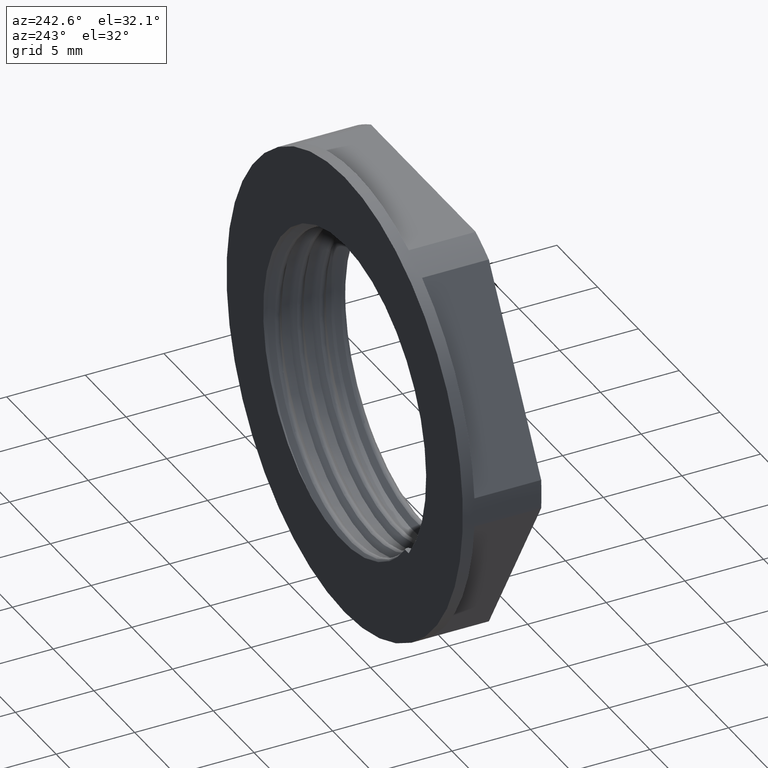
[diagram: clean part render]
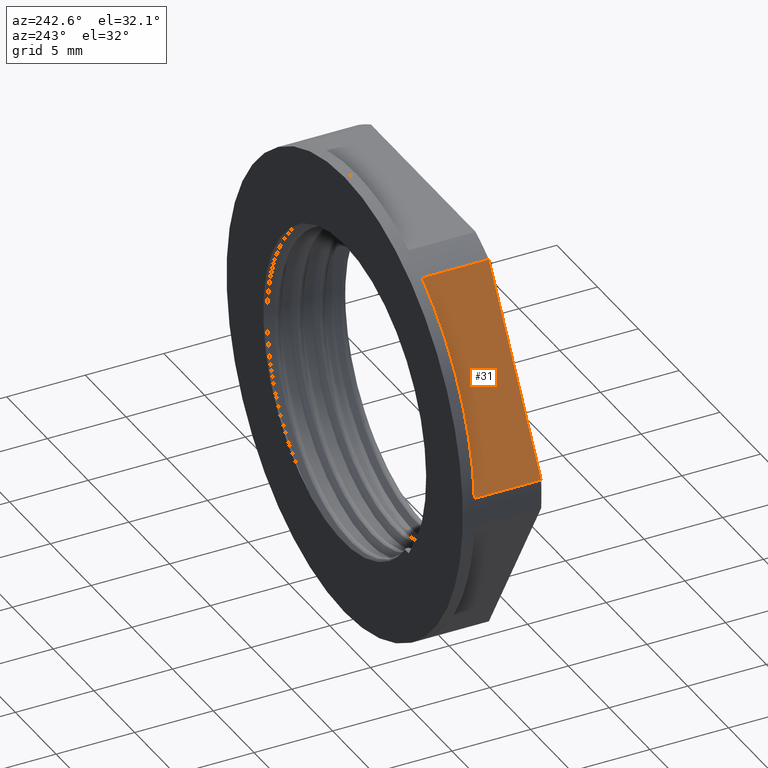
[diagram: same view with one face highlighted and labeled with its STEP entity id]
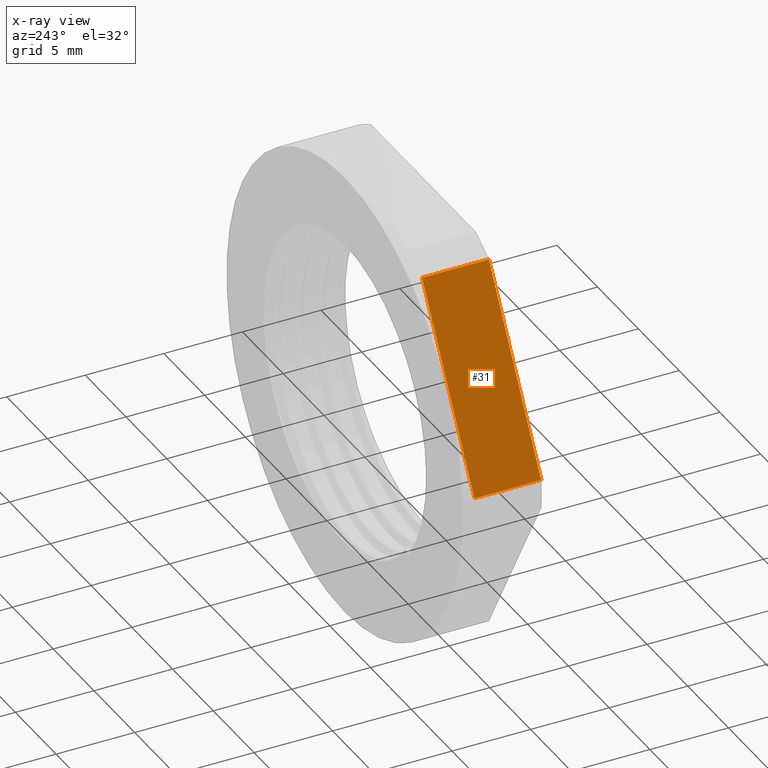
[diagram: x-ray of the same camera — body ghosted, the highlighted face saturated]
A machine part, auxiliary view. The second image highlights one B-rep face of the part: STEP entity #31.
The next image is the same camera in x-ray: the body ghosted, the highlighted face saturated — about 0% of this face is hidden behind the body in this view.
In plain terms, the highlighted planar face has unit normal (0.866, 0, -0.5).
Its self-contained STEP definition (entity closure, byte-faithful):
#31 = ADVANCED_FACE ( 'NONE', ( #1434 ), #1428, .F. ) ;
#59 = EDGE_CURVE ( 'NONE', #769, #751, #1789, .T. ) ;
#60 = EDGE_CURVE ( 'NONE', #768, #769, #1790, .T. ) ;
#91 = EDGE_CURVE ( 'NONE', #749, #768, #1976, .T. ) ;
#96 = EDGE_CURVE ( 'NONE', #751, #749, #1996, .T. ) ;
#749 = VERTEX_POINT ( 'NONE', #2107 ) ;
#751 = VERTEX_POINT ( 'NONE', #2108 ) ;
#768 = VERTEX_POINT ( 'NONE', #2214 ) ;
#769 = VERTEX_POINT ( 'NONE', #2188 ) ;
#809 = ORIENTED_EDGE ( 'NONE', *, *, #96, .F. ) ;
#814 = ORIENTED_EDGE ( 'NONE', *, *, #59, .F. ) ;
#853 = ORIENTED_EDGE ( 'NONE', *, *, #91, .F. ) ;
#883 = ORIENTED_EDGE ( 'NONE', *, *, #60, .F. ) ;
#958 = EDGE_LOOP ( 'NONE', ( #883, #853, #809, #814 ) ) ;
#1313 = AXIS2_PLACEMENT_3D ( 'NONE', #1424, #1400, #1409 ) ;
#1314 = VECTOR ( 'NONE', #1793, 1000.000000000000000 ) ;
#1339 = VECTOR ( 'NONE', #1781, 1000.000000000000000 ) ;
#1372 = VECTOR ( 'NONE', #1986, 1000.000000000000000 ) ;
#1397 = VECTOR ( 'NONE', #1997, 1000.000000000000200 ) ;
#1400 = DIRECTION ( 'NONE',  ( 0.8660254037844387100, 0.0000000000000000000, -0.4999999999999998900 ) ) ;
#1409 = DIRECTION ( 'NONE',  ( -0.4999999999999998900, 0.0000000000000000000, -0.8660254037844387100 ) ) ;
#1424 = CARTESIAN_POINT ( 'NONE',  ( -8.418545926401343100, -15.94999999999999900, 11.41865072962088200 ) ) ;
#1428 = PLANE ( 'NONE',  #1313 ) ;
#1434 = FACE_OUTER_BOUND ( 'NONE', #958, .T. ) ;
#1773 = CARTESIAN_POINT ( 'NONE',  ( -8.047022104531429000, -5.949999999999998400, 12.06214886532174200 ) ) ;
#1781 = DIRECTION ( 'NONE',  ( -0.0000000000000000000, -1.000000000000000000, -0.0000000000000000000 ) ) ;
#1789 = LINE ( 'NONE', #1773, #1339 ) ;
#1790 = LINE ( 'NONE', #1792, #1314 ) ;
#1792 = CARTESIAN_POINT ( 'NONE',  ( -8.418545926401343100, -11.70000000000000100, 11.41865072962088200 ) ) ;
#1793 = DIRECTION ( 'NONE',  ( 0.4999999999999998900, -0.0000000000000000000, 0.8660254037844387100 ) ) ;
#1959 = CARTESIAN_POINT ( 'NONE',  ( -8.047022104531429000, -15.94999999999999900, 12.06214886532174200 ) ) ;
#1969 = CARTESIAN_POINT ( 'NONE',  ( -14.46963839386398500, -5.949999999999998400, 0.9378511346782636400 ) ) ;
#1976 = LINE ( 'NONE', #1969, #1372 ) ;
#1986 = DIRECTION ( 'NONE',  ( 0.0000000000000000000, 1.000000000000000000, 0.0000000000000000000 ) ) ;
#1996 = LINE ( 'NONE', #1959, #1397 ) ;
#1997 = DIRECTION ( 'NONE',  ( -0.4999999999999997800, 0.0000000000000000000, -0.8660254037844387100 ) ) ;
#2107 = CARTESIAN_POINT ( 'NONE',  ( -14.46963839386398500, -15.94999999999999900, 0.9378511346782592000 ) ) ;
#2108 = CARTESIAN_POINT ( 'NONE',  ( -8.047022104531429000, -15.94999999999999900, 12.06214886532174400 ) ) ;
#2188 = CARTESIAN_POINT ( 'NONE',  ( -8.047022104531429000, -11.70000000000000100, 12.06214886532174200 ) ) ;
#2214 = CARTESIAN_POINT ( 'NONE',  ( -14.46963839386398300, -11.70000000000000100, 0.9378511346782616400 ) ) ;